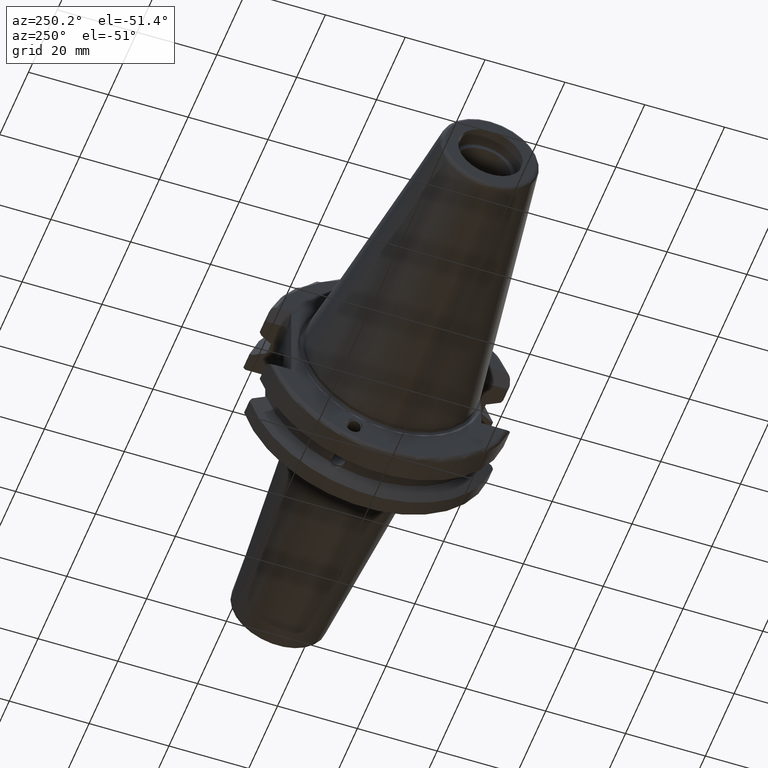
[diagram: clean part render]
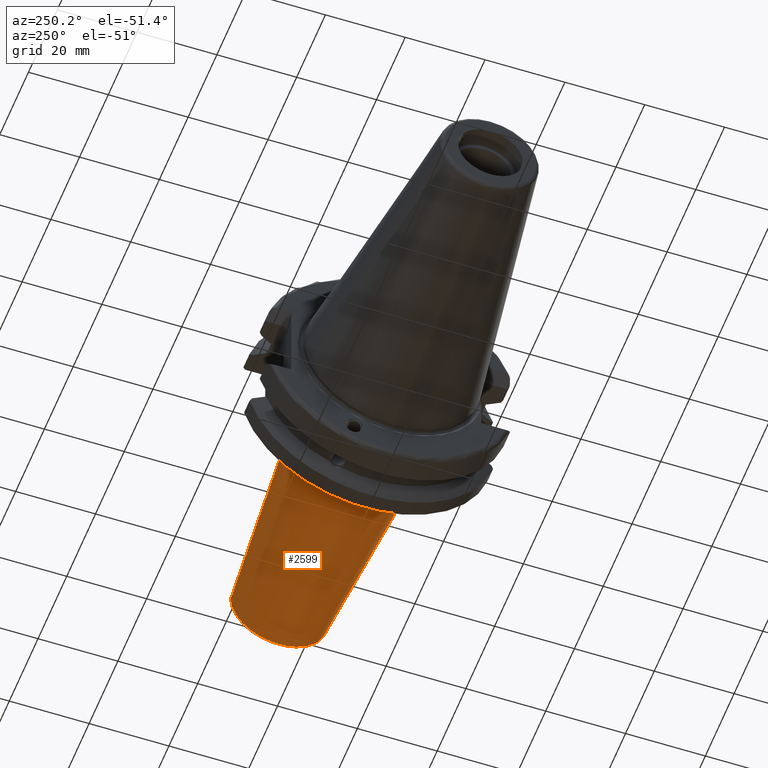
[diagram: same view with one face highlighted and labeled with its STEP entity id]
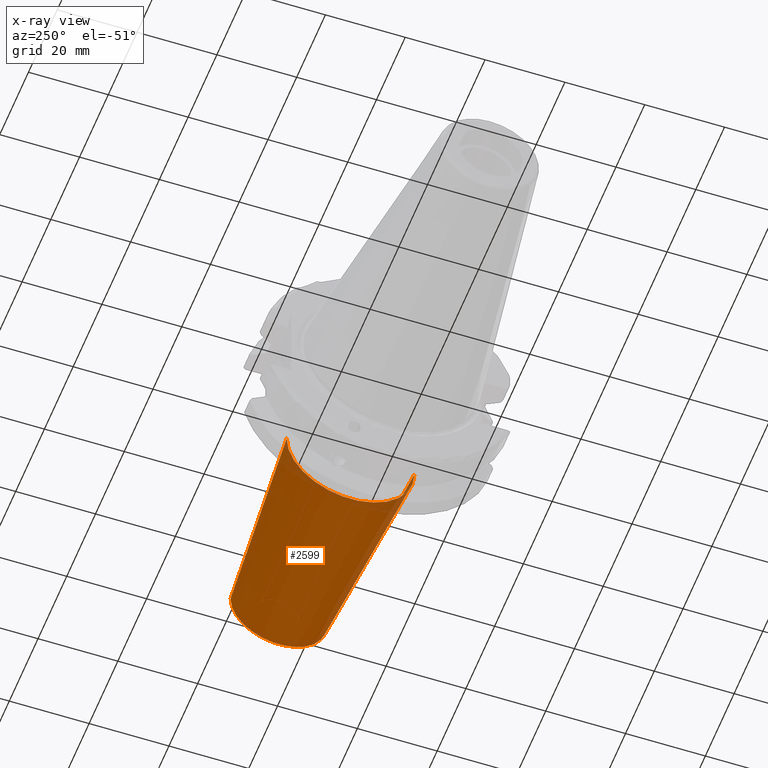
[diagram: x-ray of the same camera — body ghosted, the highlighted face saturated]
A machine part, auxiliary view. The second image highlights one B-rep face of the part: STEP entity #2599.
The next image is the same camera in x-ray: the body ghosted, the highlighted face saturated — about 6% of this face is hidden behind the body in this view.
In plain terms, the highlighted conical surface has half-angle 4.5 deg.
Its self-contained STEP definition (entity closure, byte-faithful):
#263=CARTESIAN_POINT('',(7.907846005100E1,0.E0,0.E0));
#264=DIRECTION('',(-1.E0,0.E0,0.E0));
#265=DIRECTION('',(0.E0,1.E0,0.E0));
#266=AXIS2_PLACEMENT_3D('',#263,#264,#265);
#268=DIRECTION('',(-9.969172585512E-1,7.846005099922E-2,0.E0));
#269=VECTOR('',#268,5.005771342750E1);
#270=CARTESIAN_POINT('',(7.907846005100E1,1.207252765541E1,
-2.235396996445E-13));
#271=LINE('',#270,#269);
#272=DIRECTION('',(-9.969172585512E-1,-7.846005099922E-2,0.E0));
#273=VECTOR('',#272,5.005771342750E1);
#274=CARTESIAN_POINT('',(7.907846005100E1,-1.207252765541E1,
2.201932996010E-13));
#275=LINE('',#274,#273);
#1785=CARTESIAN_POINT('',(2.917506161151E1,0.E0,0.E0));
#1786=DIRECTION('',(-1.E0,0.E0,0.E0));
#1787=DIRECTION('',(0.E0,1.E0,0.E0));
#1788=AXIS2_PLACEMENT_3D('',#1785,#1786,#1787);
#2103=CARTESIAN_POINT('',(2.917506161151E1,1.600005840383E1,0.E0));
#2104=CARTESIAN_POINT('',(2.917506161151E1,-1.600005840383E1,0.E0));
#2105=VERTEX_POINT('',#2103);
#2106=VERTEX_POINT('',#2104);
#2135=CARTESIAN_POINT('',(7.907846005100E1,1.207252765541E1,0.E0));
#2136=CARTESIAN_POINT('',(7.907846005100E1,-1.207252765541E1,0.E0));
#2137=VERTEX_POINT('',#2135);
#2138=VERTEX_POINT('',#2136);
#2585=CARTESIAN_POINT('',(5.412676083126E1,0.E0,0.E0));
#2586=DIRECTION('',(-1.E0,0.E0,0.E0));
#2587=DIRECTION('',(0.E0,1.E0,0.E0));
#2588=AXIS2_PLACEMENT_3D('',#2585,#2586,#2587);
#2589=CONICAL_SURFACE('',#2588,1.403629302962E1,4.500054902266E0);
#2590=ORIENTED_EDGE('',*,*,#2575,.F.);
#2592=ORIENTED_EDGE('',*,*,#2591,.T.);
#2594=ORIENTED_EDGE('',*,*,#2593,.T.);
#2596=ORIENTED_EDGE('',*,*,#2595,.F.);
#2597=EDGE_LOOP('',(#2590,#2592,#2594,#2596));
#2598=FACE_OUTER_BOUND('',#2597,.F.);
#2599=ADVANCED_FACE('',(#2598),#2589,.T.);
#267=CIRCLE('',#266,1.207252765541E1);
#1789=CIRCLE('',#1788,1.600005840383E1);
#2575=EDGE_CURVE('',#2137,#2138,#267,.T.);
#2591=EDGE_CURVE('',#2137,#2105,#271,.T.);
#2593=EDGE_CURVE('',#2105,#2106,#1789,.T.);
#2595=EDGE_CURVE('',#2138,#2106,#275,.T.);